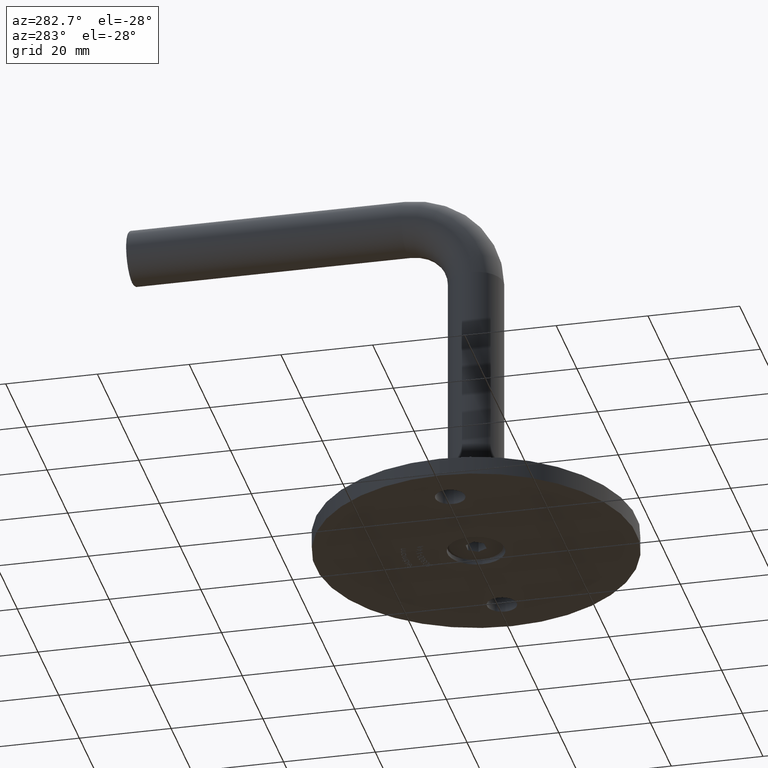
[diagram: clean part render]
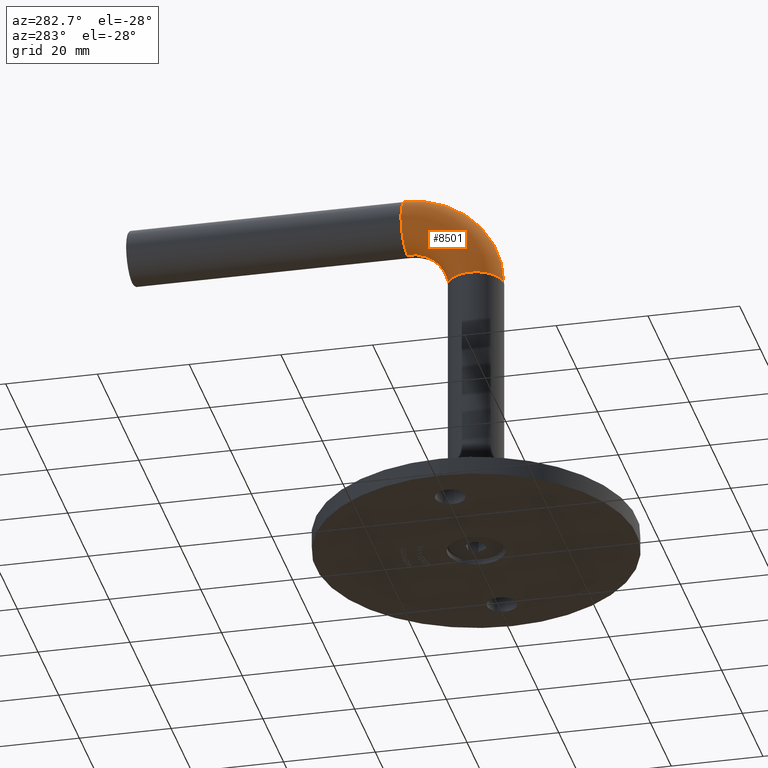
[diagram: same view with one face highlighted and labeled with its STEP entity id]
A machine part, auxiliary view. The second image highlights one B-rep face of the part: STEP entity #8501.
In plain terms, the highlighted toroidal blend (fillet) surface has major radius 15 mm and minor (blend) radius 6 mm.
Its self-contained STEP definition (entity closure, byte-faithful):
#288 = CARTESIAN_POINT ( 'NONE',  ( 0.000000000000000000, 14.99999999999999289, 60.00000000000000000 ) ) ;
#448 = CARTESIAN_POINT ( 'NONE',  ( 0.000000000000000000, 14.99999999999999289, 75.00000000000000000 ) ) ;
#668 = CARTESIAN_POINT ( 'NONE',  ( 7.347880794884124666E-16, -6.000000000000008882, 60.00000000000000000 ) ) ;
#763 = FACE_OUTER_BOUND ( 'NONE', #6180, .T. ) ;
#1901 = EDGE_CURVE ( 'NONE', #4084, #9110, #6053, .T. ) ;
#2303 = AXIS2_PLACEMENT_3D ( 'NONE', #288, #15223, #7778 ) ;
#3218 = AXIS2_PLACEMENT_3D ( 'NONE', #14591, #8171, #14483 ) ;
#3812 = DIRECTION ( 'NONE',  ( -1.000000000000000000, -0.000000000000000000, 0.000000000000000000 ) ) ;
#3955 = EDGE_CURVE ( 'NONE', #7030, #13087, #8841, .T. ) ;
#4084 = VERTEX_POINT ( 'NONE', #10694 ) ;
#4471 = CARTESIAN_POINT ( 'NONE',  ( 7.347880794884120722E-16, 14.99999999999999289, 60.00000000000000000 ) ) ;
#4749 = ORIENTED_EDGE ( 'NONE', *, *, #1901, .T. ) ;
#5839 = CIRCLE ( 'NONE', #2303, 21.00000000000000355 ) ;
#6053 = CIRCLE ( 'NONE', #3218, 6.000000000000000888 ) ;
#6099 = AXIS2_PLACEMENT_3D ( 'NONE', #15026, #3812, #10220 ) ;
#6180 = EDGE_LOOP ( 'NONE', ( #4749, #7163, #7656, #12341 ) ) ;
#6268 = TOROIDAL_SURFACE ( 'NONE', #6099, 15.00000000000000000, 6.000000000000000888 ) ;
#6551 = DIRECTION ( 'NONE',  ( 0.000000000000000000, 1.000000000000000000, 6.123233995736766036E-17 ) ) ;
#6792 = DIRECTION ( 'NONE',  ( -1.000000000000000000, -0.000000000000000000, 0.000000000000000000 ) ) ;
#6843 = DIRECTION ( 'NONE',  ( 0.000000000000000000, 0.000000000000000000, 1.000000000000000000 ) ) ;
#7030 = VERTEX_POINT ( 'NONE', #12464 ) ;
#7163 = ORIENTED_EDGE ( 'NONE', *, *, #7733, .T. ) ;
#7656 = ORIENTED_EDGE ( 'NONE', *, *, #3955, .F. ) ;
#7733 = EDGE_CURVE ( 'NONE', #9110, #13087, #5839, .T. ) ;
#7778 = DIRECTION ( 'NONE',  ( 0.000000000000000000, 0.000000000000000000, 1.000000000000000000 ) ) ;
#8171 = DIRECTION ( 'NONE',  ( 0.000000000000000000, 0.000000000000000000, 1.000000000000000000 ) ) ;
#8501 = ADVANCED_FACE ( 'NONE', ( #763 ), #6268, .T. ) ;
#8728 = EDGE_CURVE ( 'NONE', #4084, #7030, #13222, .T. ) ;
#8841 = CIRCLE ( 'NONE', #9241, 6.000000000000000888 ) ;
#9110 = VERTEX_POINT ( 'NONE', #668 ) ;
#9241 = AXIS2_PLACEMENT_3D ( 'NONE', #448, #6551, #14246 ) ;
#10220 = DIRECTION ( 'NONE',  ( 0.000000000000000000, 0.000000000000000000, 1.000000000000000000 ) ) ;
#10694 = CARTESIAN_POINT ( 'NONE',  ( 0.000000000000000000, 5.999999999999993783, 60.00000000000000000 ) ) ;
#11557 = CARTESIAN_POINT ( 'NONE',  ( 0.000000000000000000, 14.99999999999999289, 81.00000000000000000 ) ) ;
#12341 = ORIENTED_EDGE ( 'NONE', *, *, #8728, .F. ) ;
#12464 = CARTESIAN_POINT ( 'NONE',  ( 7.347880794884113820E-16, 14.99999999999999289, 68.99999999999998579 ) ) ;
#12632 = AXIS2_PLACEMENT_3D ( 'NONE', #4471, #6792, #6843 ) ;
#13087 = VERTEX_POINT ( 'NONE', #11557 ) ;
#13222 = CIRCLE ( 'NONE', #12632, 8.999999999999994671 ) ;
#14246 = DIRECTION ( 'NONE',  ( 1.000000000000000000, 0.000000000000000000, 0.000000000000000000 ) ) ;
#14483 = DIRECTION ( 'NONE',  ( 1.000000000000000000, 0.000000000000000000, 0.000000000000000000 ) ) ;
#14591 = CARTESIAN_POINT ( 'NONE',  ( 0.000000000000000000, -6.938893903907228378E-15, 60.00000000000000000 ) ) ;
#15026 = CARTESIAN_POINT ( 'NONE',  ( 0.000000000000000000, 14.99999999999999289, 60.00000000000000000 ) ) ;
#15223 = DIRECTION ( 'NONE',  ( -1.000000000000000000, -0.000000000000000000, 0.000000000000000000 ) ) ;